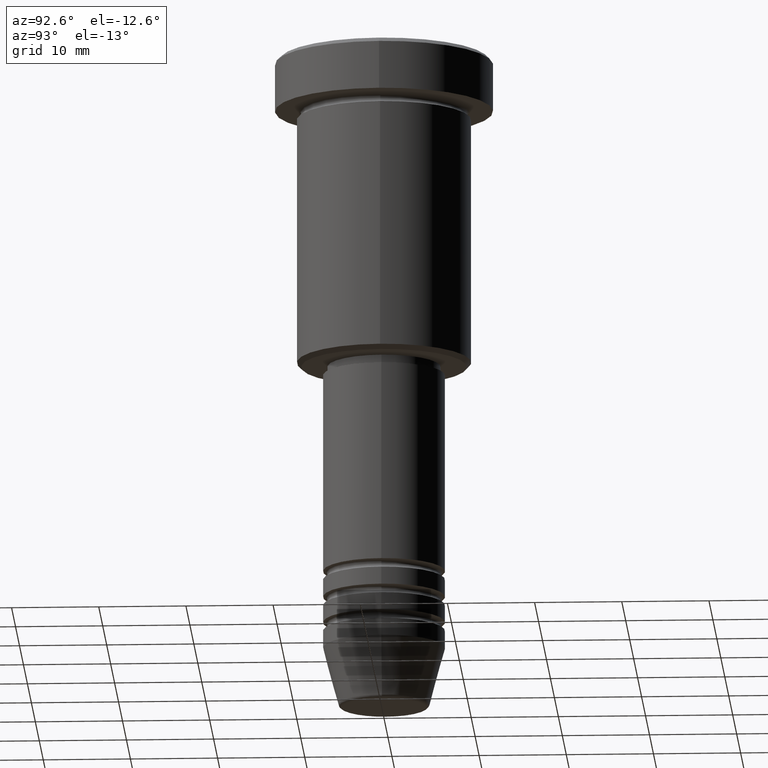
[diagram: clean part render]
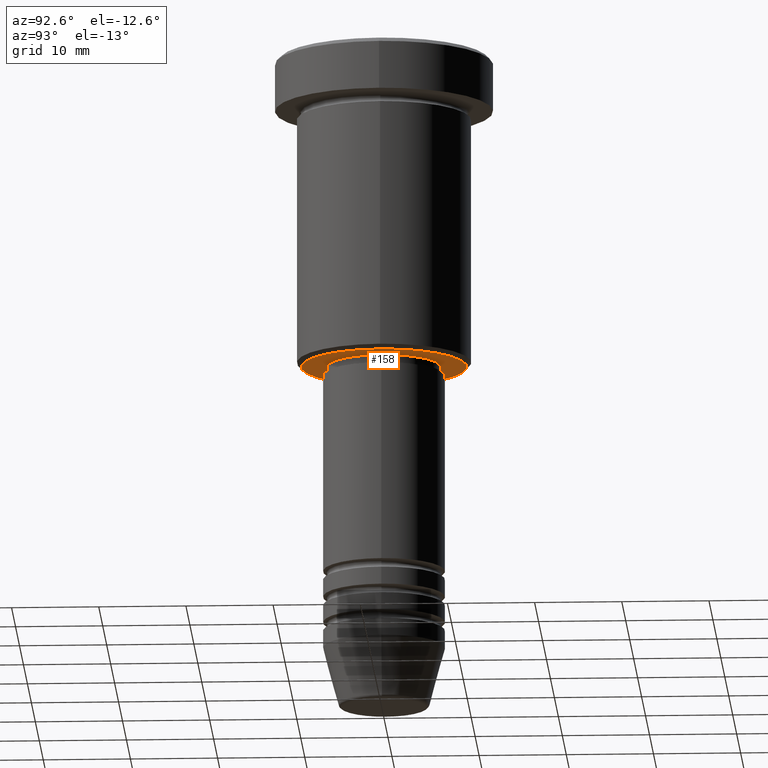
[diagram: same view with one face highlighted and labeled with its STEP entity id]
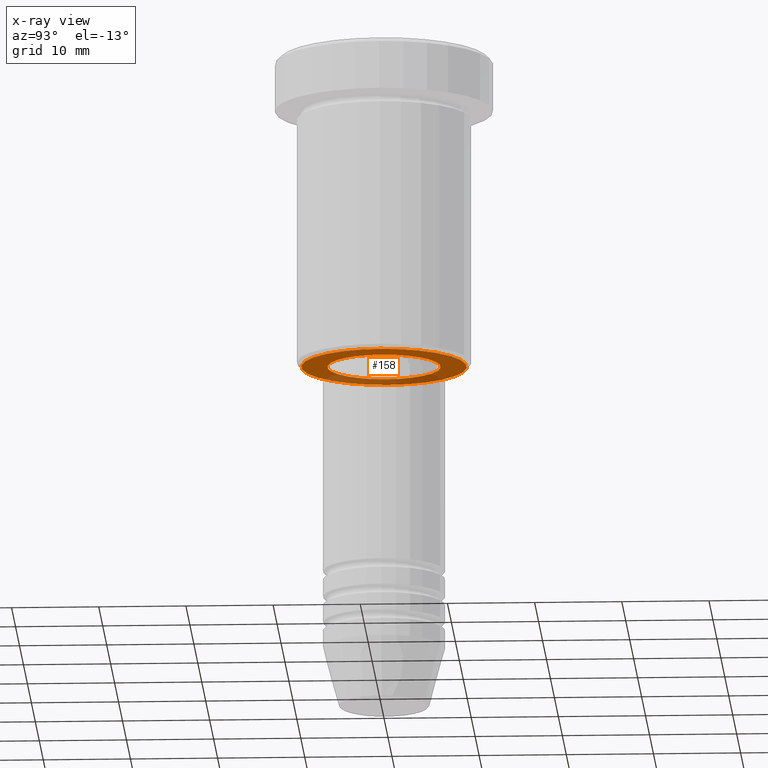
[diagram: x-ray of the same camera — body ghosted, the highlighted face saturated]
A machine part, auxiliary view. The second image highlights one B-rep face of the part: STEP entity #158.
The next image is the same camera in x-ray: the body ghosted, the highlighted face saturated — about 27% of this face is hidden behind the body in this view.
In plain terms, the highlighted planar face has unit normal (0, 0, -1).
Its self-contained STEP definition (entity closure, byte-faithful):
#26 = VERTEX_POINT ( 'NONE', #661 ) ;
#29 = DIRECTION ( 'NONE',  ( -0.000000000000000000, -0.000000000000000000, 1.000000000000000000 ) ) ;
#40 = VERTEX_POINT ( 'NONE', #112 ) ;
#54 = DIRECTION ( 'NONE',  ( 0.000000000000000000, 0.000000000000000000, -1.000000000000000000 ) ) ;
#69 = EDGE_CURVE ( 'NONE', #26, #1002, #944, .T. ) ;
#112 = CARTESIAN_POINT ( 'NONE',  ( -6.500000000000000000, 7.960204194457795477E-16, -36.00000000000000711 ) ) ;
#115 = DIRECTION ( 'NONE',  ( 0.000000000000000000, 0.000000000000000000, -1.000000000000000000 ) ) ;
#117 = AXIS2_PLACEMENT_3D ( 'NONE', #1135, #319, #785 ) ;
#118 = CIRCLE ( 'NONE', #1022, 9.500000000000001776 ) ;
#142 = CIRCLE ( 'NONE', #935, 6.500000000000000000 ) ;
#158 = ADVANCED_FACE ( 'NONE', ( #1118, #414 ), #339, .T. ) ;
#226 = DIRECTION ( 'NONE',  ( 1.000000000000000000, 0.000000000000000000, 0.000000000000000000 ) ) ;
#242 = DIRECTION ( 'NONE',  ( -1.000000000000000000, 0.000000000000000000, -0.000000000000000000 ) ) ;
#305 = CARTESIAN_POINT ( 'NONE',  ( 0.000000000000000000, 0.000000000000000000, -36.00000000000000711 ) ) ;
#319 = DIRECTION ( 'NONE',  ( -0.000000000000000000, -0.000000000000000000, 1.000000000000000000 ) ) ;
#339 = PLANE ( 'NONE',  #835 ) ;
#358 = CARTESIAN_POINT ( 'NONE',  ( 6.500000000000000000, 0.000000000000000000, -36.00000000000000711 ) ) ;
#360 = EDGE_LOOP ( 'NONE', ( #521, #941 ) ) ;
#414 = FACE_BOUND ( 'NONE', #427, .T. ) ;
#427 = EDGE_LOOP ( 'NONE', ( #514, #925 ) ) ;
#476 = DIRECTION ( 'NONE',  ( -1.000000000000000000, 0.000000000000000000, 0.000000000000000000 ) ) ;
#504 = AXIS2_PLACEMENT_3D ( 'NONE', #305, #893, #955 ) ;
#514 = ORIENTED_EDGE ( 'NONE', *, *, #575, .T. ) ;
#521 = ORIENTED_EDGE ( 'NONE', *, *, #69, .T. ) ;
#571 = CARTESIAN_POINT ( 'NONE',  ( 0.000000000000000000, 0.000000000000000000, -36.00000000000000711 ) ) ;
#575 = EDGE_CURVE ( 'NONE', #1056, #40, #918, .T. ) ;
#621 = CARTESIAN_POINT ( 'NONE',  ( -9.500000000000001776, 1.194030629168669469E-15, -36.00000000000000711 ) ) ;
#658 = EDGE_CURVE ( 'NONE', #40, #1056, #142, .T. ) ;
#661 = CARTESIAN_POINT ( 'NONE',  ( 9.500000000000001776, 0.000000000000000000, -36.00000000000000711 ) ) ;
#785 = DIRECTION ( 'NONE',  ( 1.000000000000000000, 0.000000000000000000, 0.000000000000000000 ) ) ;
#835 = AXIS2_PLACEMENT_3D ( 'NONE', #1136, #54, #242 ) ;
#857 = CARTESIAN_POINT ( 'NONE',  ( 0.000000000000000000, 0.000000000000000000, -36.00000000000000711 ) ) ;
#859 = EDGE_CURVE ( 'NONE', #1002, #26, #118, .T. ) ;
#893 = DIRECTION ( 'NONE',  ( 0.000000000000000000, 0.000000000000000000, -1.000000000000000000 ) ) ;
#918 = CIRCLE ( 'NONE', #117, 6.500000000000000000 ) ;
#925 = ORIENTED_EDGE ( 'NONE', *, *, #658, .T. ) ;
#935 = AXIS2_PLACEMENT_3D ( 'NONE', #857, #29, #226 ) ;
#941 = ORIENTED_EDGE ( 'NONE', *, *, #859, .T. ) ;
#944 = CIRCLE ( 'NONE', #504, 9.500000000000001776 ) ;
#955 = DIRECTION ( 'NONE',  ( -1.000000000000000000, 0.000000000000000000, 0.000000000000000000 ) ) ;
#1002 = VERTEX_POINT ( 'NONE', #621 ) ;
#1022 = AXIS2_PLACEMENT_3D ( 'NONE', #571, #115, #476 ) ;
#1056 = VERTEX_POINT ( 'NONE', #358 ) ;
#1118 = FACE_OUTER_BOUND ( 'NONE', #360, .T. ) ;
#1135 = CARTESIAN_POINT ( 'NONE',  ( 0.000000000000000000, 0.000000000000000000, -36.00000000000000711 ) ) ;
#1136 = CARTESIAN_POINT ( 'NONE',  ( 0.000000000000000000, 10.00000000000000000, -36.00000000000000711 ) ) ;